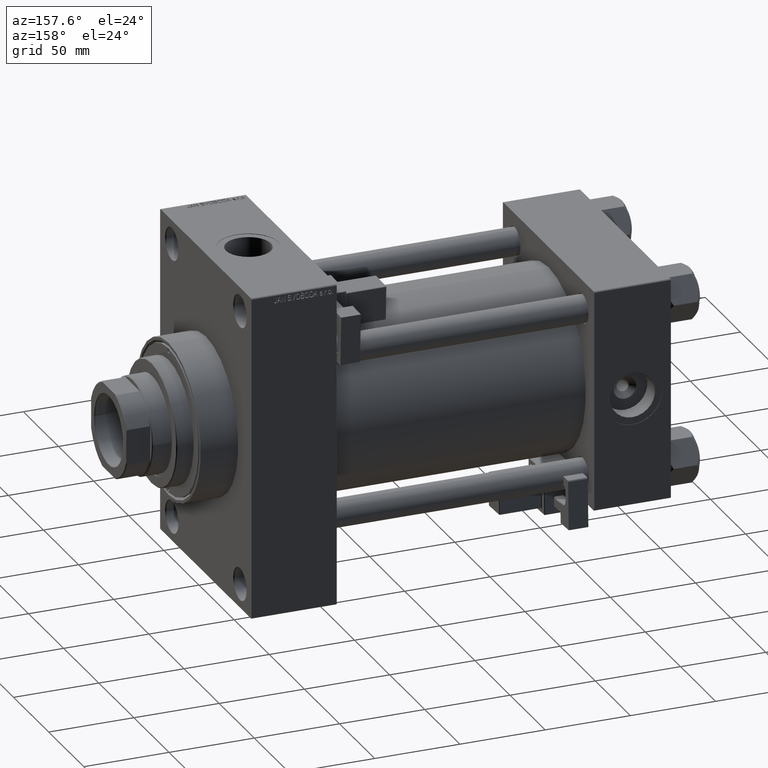
[diagram: clean part render]
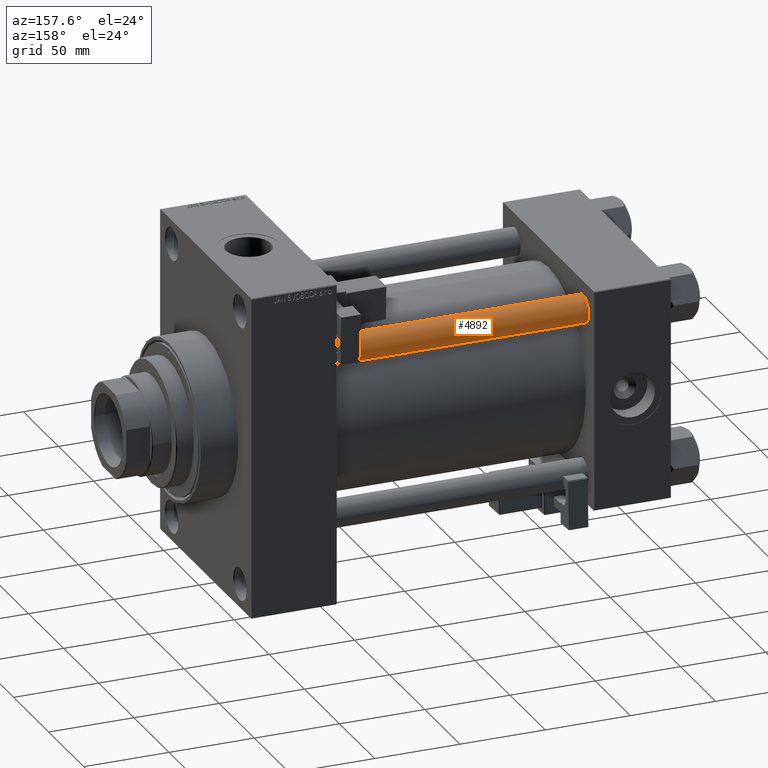
[diagram: same view with one face highlighted and labeled with its STEP entity id]
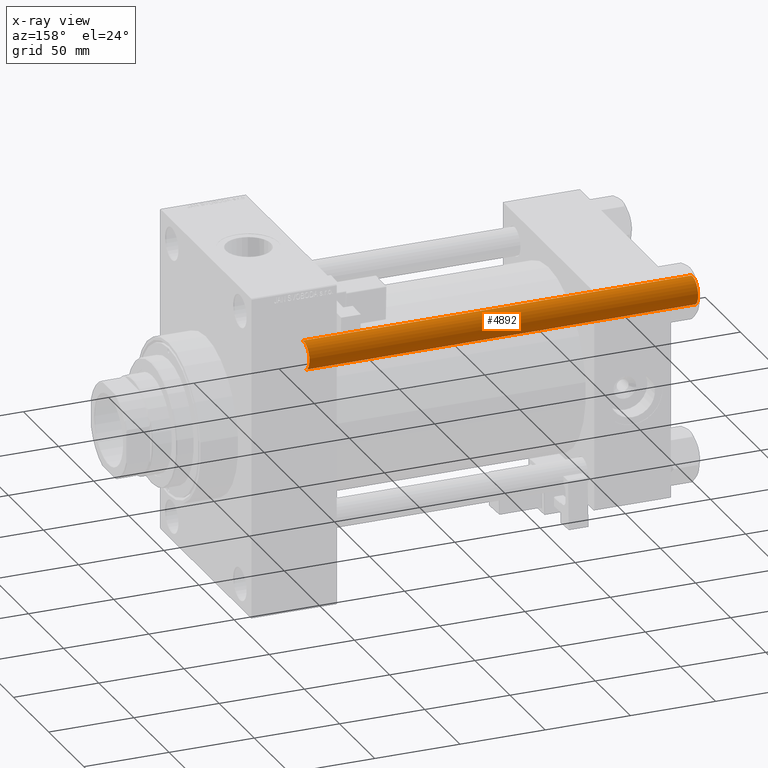
[diagram: x-ray of the same camera — body ghosted, the highlighted face saturated]
A machine part, auxiliary view. The second image highlights one B-rep face of the part: STEP entity #4892.
The next image is the same camera in x-ray: the body ghosted, the highlighted face saturated — about 0% of this face is hidden behind the body in this view.
In plain terms, the highlighted cylindrical surface (edge-blend (fillet) strip) has radius 8 mm, axis along (-1, -0, 0).
Its self-contained STEP definition (entity closure, byte-faithful):
#319 = ORIENTED_EDGE ( 'NONE', *, *, #13750, .T. ) ;
#2835 = VERTEX_POINT ( 'NONE', #16598 ) ;
#4315 = VERTEX_POINT ( 'NONE', #5590 ) ;
#4598 = DIRECTION ( 'NONE',  ( 1.000000000000000000, 0.000000000000000000, 0.000000000000000000 ) ) ;
#4856 = DIRECTION ( 'NONE',  ( -1.000000000000000000, 0.000000000000000000, 0.000000000000000000 ) ) ;
#4892 = ADVANCED_FACE ( 'NONE', ( #16503 ), #23629, .T. ) ;
#5590 = CARTESIAN_POINT ( 'NONE',  ( -8.000000000000000000, 0.000000000000000000, 0.5000000000001392220 ) ) ;
#8660 = DIRECTION ( 'NONE',  ( 0.000000000000000000, 0.000000000000000000, -1.000000000000000000 ) ) ;
#9082 = VERTEX_POINT ( 'NONE', #19552 ) ;
#9909 = DIRECTION ( 'NONE',  ( -0.000000000000000000, -0.000000000000000000, -1.000000000000000000 ) ) ;
#11413 = EDGE_CURVE ( 'NONE', #2835, #9082, #19877, .T. ) ;
#12199 = CARTESIAN_POINT ( 'NONE',  ( 0.000000000000000000, 0.000000000000000000, 228.5000000000000853 ) ) ;
#13714 = CARTESIAN_POINT ( 'NONE',  ( 8.000000000000000000, 9.797174393178823685E-16, 229.0000000000000000 ) ) ;
#13750 = EDGE_CURVE ( 'NONE', #9082, #33049, #32978, .T. ) ;
#16503 = FACE_OUTER_BOUND ( 'NONE', #19253, .T. ) ;
#16598 = CARTESIAN_POINT ( 'NONE',  ( -8.000000000000000000, 0.000000000000000000, 228.5000000000000853 ) ) ;
#16798 = CARTESIAN_POINT ( 'NONE',  ( 0.000000000000000000, 0.000000000000000000, 0.5000000000001392220 ) ) ;
#18718 = CARTESIAN_POINT ( 'NONE',  ( -8.000000000000000000, 0.000000000000000000, 229.0000000000000000 ) ) ;
#19253 = EDGE_LOOP ( 'NONE', ( #27484, #319, #29342, #20174 ) ) ;
#19552 = CARTESIAN_POINT ( 'NONE',  ( 8.000000000000000000, 9.797174393178823685E-16, 228.5000000000000853 ) ) ;
#19877 = CIRCLE ( 'NONE', #27204, 8.000000000000000000 ) ;
#20174 = ORIENTED_EDGE ( 'NONE', *, *, #25401, .F. ) ;
#21131 = EDGE_CURVE ( 'NONE', #33049, #4315, #26986, .T. ) ;
#22233 = AXIS2_PLACEMENT_3D ( 'NONE', #31217, #47208, #4856 ) ;
#22281 = DIRECTION ( 'NONE',  ( -0.000000000000000000, -0.000000000000000000, -1.000000000000000000 ) ) ;
#23629 = CYLINDRICAL_SURFACE ( 'NONE', #22233, 8.000000000000000000 ) ;
#25401 = EDGE_CURVE ( 'NONE', #2835, #4315, #49668, .T. ) ;
#26986 = CIRCLE ( 'NONE', #40738, 8.000000000000000000 ) ;
#27204 = AXIS2_PLACEMENT_3D ( 'NONE', #12199, #8660, #4598 ) ;
#27484 = ORIENTED_EDGE ( 'NONE', *, *, #11413, .T. ) ;
#28465 = DIRECTION ( 'NONE',  ( -0.000000000000000000, -0.000000000000000000, 1.000000000000000000 ) ) ;
#29342 = ORIENTED_EDGE ( 'NONE', *, *, #21131, .T. ) ;
#31217 = CARTESIAN_POINT ( 'NONE',  ( 0.000000000000000000, 0.000000000000000000, 229.0000000000000000 ) ) ;
#31277 = VECTOR ( 'NONE', #9909, 1000.000000000000000 ) ;
#32978 = LINE ( 'NONE', #13714, #31277 ) ;
#33049 = VERTEX_POINT ( 'NONE', #48312 ) ;
#36857 = VECTOR ( 'NONE', #22281, 1000.000000000000000 ) ;
#40738 = AXIS2_PLACEMENT_3D ( 'NONE', #16798, #28465, #46566 ) ;
#46566 = DIRECTION ( 'NONE',  ( 1.000000000000000000, 0.000000000000000000, 0.000000000000000000 ) ) ;
#47208 = DIRECTION ( 'NONE',  ( -0.000000000000000000, -0.000000000000000000, -1.000000000000000000 ) ) ;
#48312 = CARTESIAN_POINT ( 'NONE',  ( 8.000000000000000000, 9.797174393178823685E-16, 0.5000000000001392220 ) ) ;
#49668 = LINE ( 'NONE', #18718, #36857 ) ;